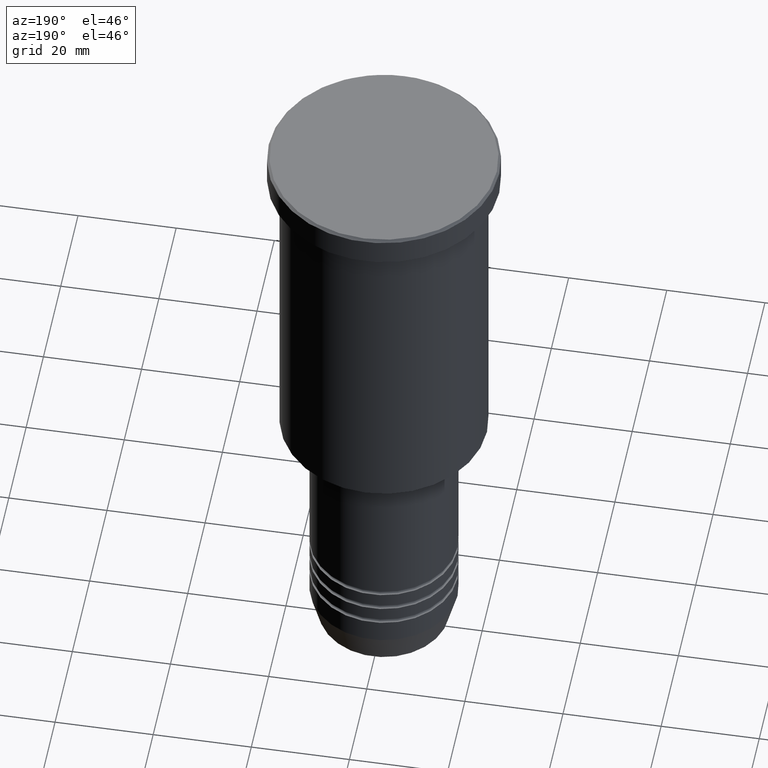
[diagram: clean part render]
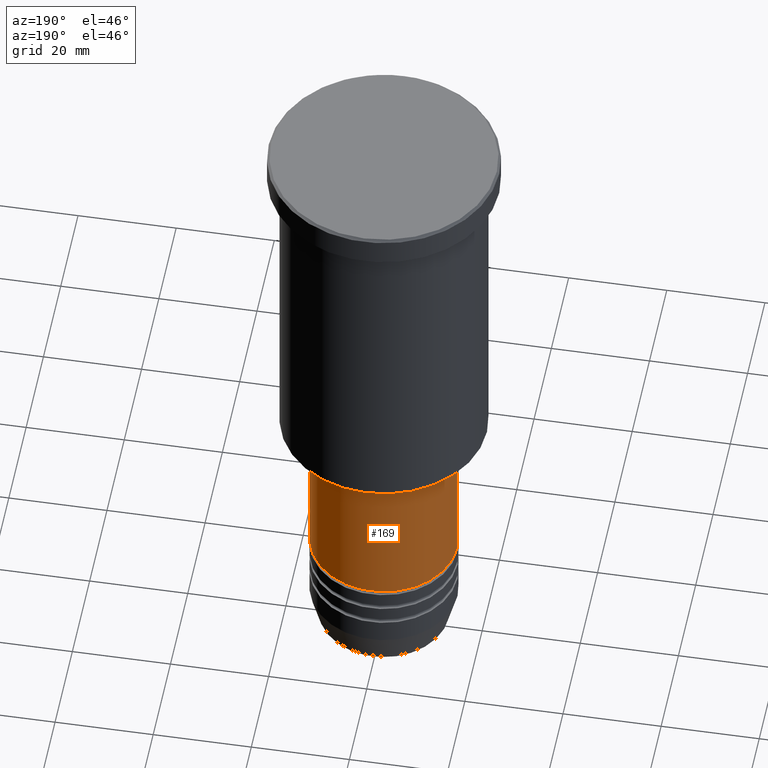
[diagram: same view with one face highlighted and labeled with its STEP entity id]
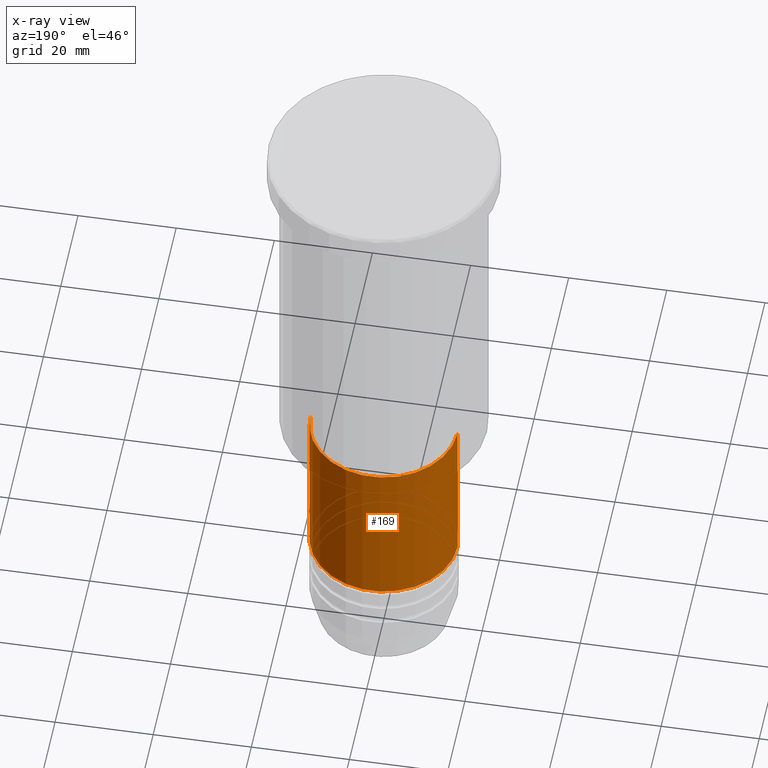
[diagram: x-ray of the same camera — body ghosted, the highlighted face saturated]
A machine part, auxiliary view. The second image highlights one B-rep face of the part: STEP entity #169.
The next image is the same camera in x-ray: the body ghosted, the highlighted face saturated — about 1% of this face is hidden behind the body in this view.
In plain terms, the highlighted cylindrical surface (partial cylindrical patch) has radius 15 mm, axis along (-0, -0, 1).
Its self-contained STEP definition (entity closure, byte-faithful):
#20 = AXIS2_PLACEMENT_3D ( 'NONE', #458, #714, #184 ) ;
#38 = VERTEX_POINT ( 'NONE', #61 ) ;
#61 = CARTESIAN_POINT ( 'NONE',  ( 15.00000000000000000, 0.000000000000000000, -76.99999999999998579 ) ) ;
#115 = CIRCLE ( 'NONE', #20, 15.00000000000000000 ) ;
#169 = ADVANCED_FACE ( 'NONE', ( #834 ), #936, .T. ) ;
#184 = DIRECTION ( 'NONE',  ( 1.000000000000000000, 0.000000000000000000, 0.000000000000000000 ) ) ;
#210 = AXIS2_PLACEMENT_3D ( 'NONE', #1161, #240, #426 ) ;
#232 = VECTOR ( 'NONE', #499, 1000.000000000000000 ) ;
#240 = DIRECTION ( 'NONE',  ( -0.000000000000000000, -0.000000000000000000, 1.000000000000000000 ) ) ;
#243 = EDGE_CURVE ( 'NONE', #38, #667, #289, .T. ) ;
#250 = ORIENTED_EDGE ( 'NONE', *, *, #243, .F. ) ;
#289 = CIRCLE ( 'NONE', #210, 15.00000000000000000 ) ;
#295 = CARTESIAN_POINT ( 'NONE',  ( 15.00000000000000000, 0.000000000000000000, 0.000000000000000000 ) ) ;
#396 = DIRECTION ( 'NONE',  ( -0.000000000000000000, -0.000000000000000000, 1.000000000000000000 ) ) ;
#426 = DIRECTION ( 'NONE',  ( 1.000000000000000000, 0.000000000000000000, 0.000000000000000000 ) ) ;
#458 = CARTESIAN_POINT ( 'NONE',  ( 0.000000000000000000, 0.000000000000000000, -109.9999999999998863 ) ) ;
#481 = LINE ( 'NONE', #295, #915 ) ;
#499 = DIRECTION ( 'NONE',  ( -0.000000000000000000, -0.000000000000000000, 1.000000000000000000 ) ) ;
#606 = LINE ( 'NONE', #953, #232 ) ;
#655 = CARTESIAN_POINT ( 'NONE',  ( 0.000000000000000000, 0.000000000000000000, 0.000000000000000000 ) ) ;
#667 = VERTEX_POINT ( 'NONE', #1158 ) ;
#714 = DIRECTION ( 'NONE',  ( -0.000000000000000000, -0.000000000000000000, 1.000000000000000000 ) ) ;
#749 = CARTESIAN_POINT ( 'NONE',  ( 15.00000000000000000, 0.000000000000000000, -109.9999999999998863 ) ) ;
#770 = ORIENTED_EDGE ( 'NONE', *, *, #873, .T. ) ;
#826 = EDGE_CURVE ( 'NONE', #833, #667, #606, .T. ) ;
#833 = VERTEX_POINT ( 'NONE', #1081 ) ;
#834 = FACE_OUTER_BOUND ( 'NONE', #1069, .T. ) ;
#862 = ORIENTED_EDGE ( 'NONE', *, *, #1058, .F. ) ;
#873 = EDGE_CURVE ( 'NONE', #1127, #833, #115, .T. ) ;
#890 = AXIS2_PLACEMENT_3D ( 'NONE', #655, #1035, #940 ) ;
#915 = VECTOR ( 'NONE', #396, 1000.000000000000000 ) ;
#936 = CYLINDRICAL_SURFACE ( 'NONE', #890, 15.00000000000000000 ) ;
#940 = DIRECTION ( 'NONE',  ( 1.000000000000000000, 0.000000000000000000, 0.000000000000000000 ) ) ;
#953 = CARTESIAN_POINT ( 'NONE',  ( -15.00000000000000000, 1.836970198721029589E-15, 0.000000000000000000 ) ) ;
#1022 = ORIENTED_EDGE ( 'NONE', *, *, #826, .T. ) ;
#1035 = DIRECTION ( 'NONE',  ( -0.000000000000000000, -0.000000000000000000, 1.000000000000000000 ) ) ;
#1058 = EDGE_CURVE ( 'NONE', #1127, #38, #481, .T. ) ;
#1069 = EDGE_LOOP ( 'NONE', ( #770, #1022, #250, #862 ) ) ;
#1081 = CARTESIAN_POINT ( 'NONE',  ( -15.00000000000000000, 1.836970198721029589E-15, -109.9999999999998863 ) ) ;
#1127 = VERTEX_POINT ( 'NONE', #749 ) ;
#1158 = CARTESIAN_POINT ( 'NONE',  ( -15.00000000000000000, 1.836970198721029589E-15, -76.99999999999998579 ) ) ;
#1161 = CARTESIAN_POINT ( 'NONE',  ( 0.000000000000000000, 0.000000000000000000, -76.99999999999998579 ) ) ;